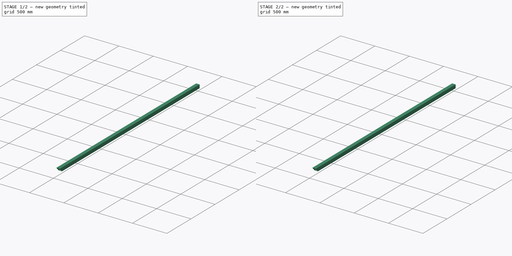
[diagram: build sequence overview — one tinted view per stage of 2, left to right]
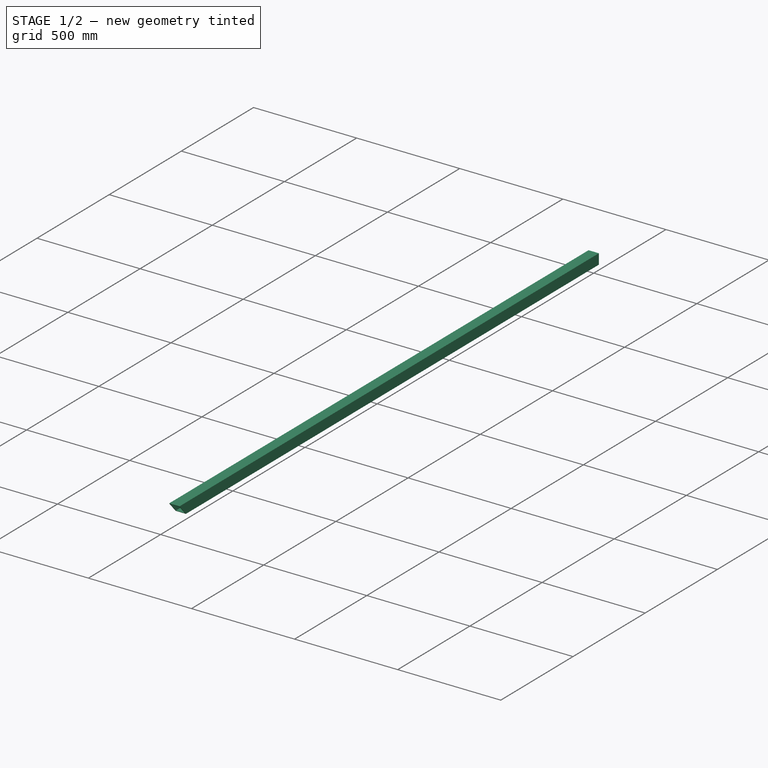
[diagram: stage 1 of 2 — iso view after this stage's code; geometry added in this stage tinted green]
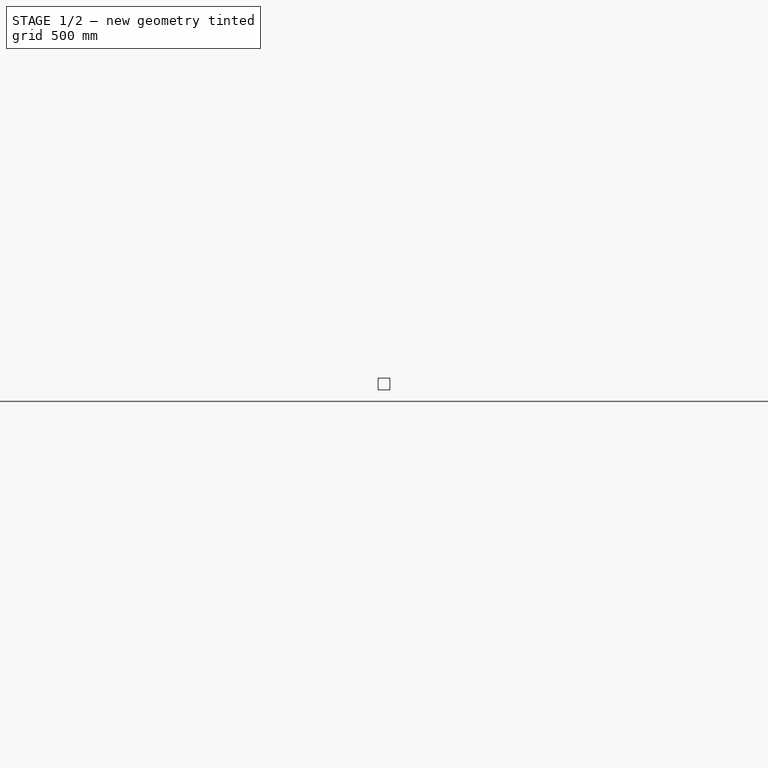
[diagram: stage 1 of 2 — front view after this stage's code; geometry added in this stage tinted green]
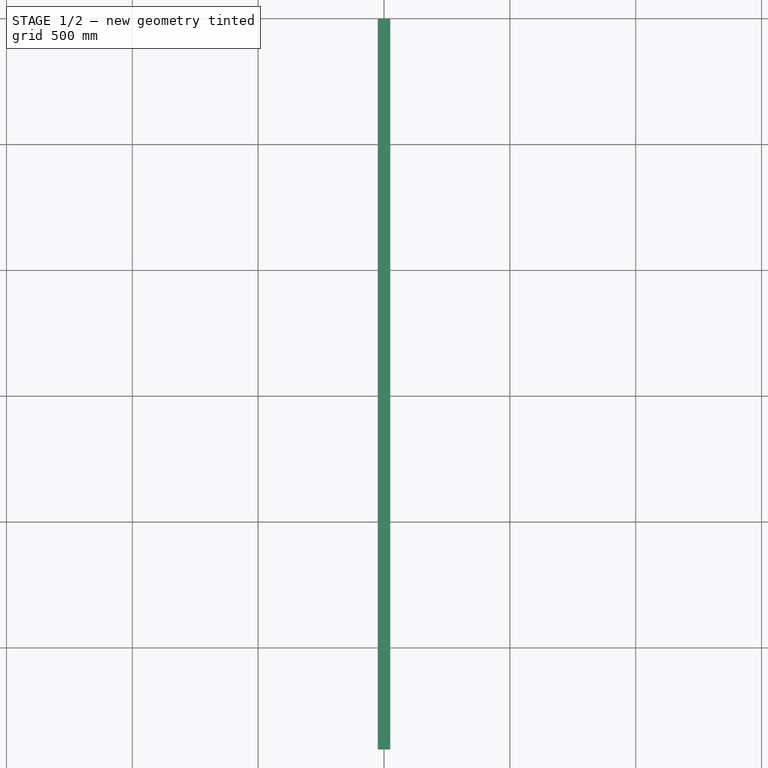
[diagram: stage 1 of 2 — top view after this stage's code; geometry added in this stage tinted green]
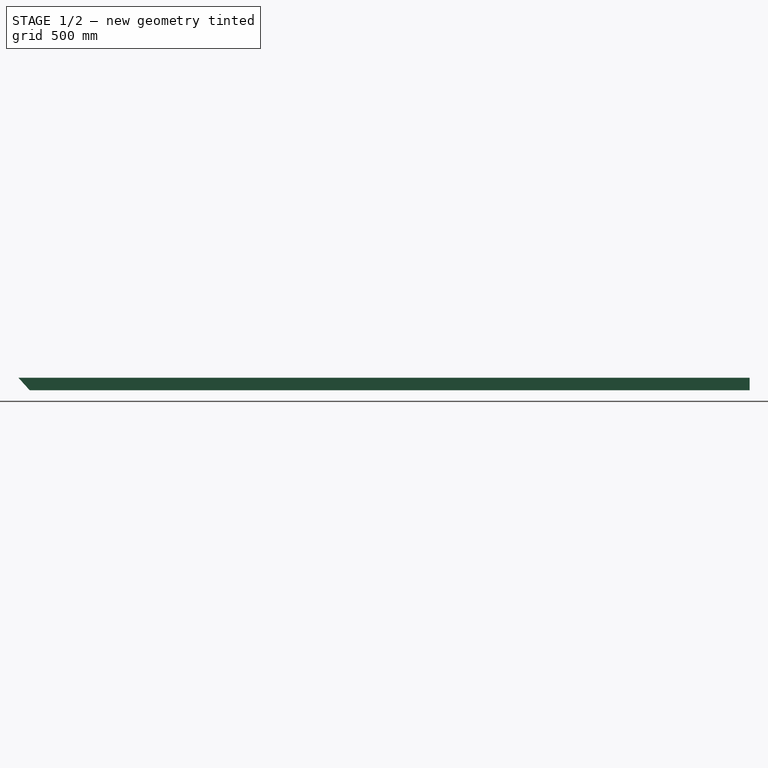
[diagram: stage 1 of 2 — right view after this stage's code; geometry added in this stage tinted green]
FCSTD DOCUMENT  (FreeCAD 0.15R4671 (Git))
Label: Tube_50x50x3_L2905
License: All rights reserved
LicenseURL: http://en.wikipedia.org/wiki/All_rights_reserved
objects: Sketcher::SketchObject×3, PartDesign::Pocket×2, PartDesign::Pad×1
note: 9 computed .brp shape members not serialized (recipe doc carries the construction recipe); baked Part::Feature solids carry a one-line shape summary decoded from their .brp

FEATURE [Sketcher::SketchObject] Sketch
  Placement = pos=(0,0,0) rot=(1,0,0;1.5708rad)
  sketch-geometry (10):
    g0: LineSegment StartX=25 StartY=-25 StartZ=0 EndX=25 EndY=25 EndZ=0
    g1: LineSegment StartX=25 StartY=25 StartZ=0 EndX=-25 EndY=25 EndZ=0
    g2: LineSegment StartX=-25 StartY=25 StartZ=0 EndX=-25 EndY=-25 EndZ=0
    g3: LineSegment StartX=-25 StartY=-25 StartZ=0 EndX=25 EndY=-25 EndZ=0
    g4: Circle [constr] CenterX=0 CenterY=0 CenterZ=0 NormalX=0 NormalY=0 NormalZ=1 Radius=35.3553
    g5: LineSegment StartX=22 StartY=-22 StartZ=0 EndX=22 EndY=22 EndZ=0
    g6: LineSegment StartX=22 StartY=22 StartZ=0 EndX=-22 EndY=22 EndZ=0
    g7: LineSegment StartX=-22 StartY=22 StartZ=0 EndX=-22 EndY=-22 EndZ=0
    g8: LineSegment StartX=-22 StartY=-22 StartZ=0 EndX=22 EndY=-22 EndZ=0
    g9: Circle [constr] CenterX=0 CenterY=0 CenterZ=0 NormalX=0 NormalY=0 NormalZ=1 Radius=31.1127
  constraints (30):
    c: Coincident(g0,g1)
    c: Coincident(g1,g2)
    c: Coincident(g2,g3)
    c: Coincident(g3,g0)
    c: Equal(g0,g1)
    c: Equal(g0,g2)
    c: Equal(g0,g3)
    c: PointOnObject(g0,g4)
    c: PointOnObject(g1,g4)
    c: PointOnObject(g2,g4)
    c: PointOnObject(g3,g4)
    c: Coincident(g1,g-1)
    c: Coincident(g5,g6)
    c: Coincident(g6,g7)
    c: Coincident(g7,g8)
    c: Coincident(g8,g5)
    c: Equal(g5,g6)
    c: Equal(g5,g7)
    c: Equal(g5,g8)
    c: PointOnObject(g5,g9)
    c: PointOnObject(g6,g9)
    c: PointOnObject(g7,g9)
    c: PointOnObject(g8,g9)
    c: Coincident(g6,g-1)
    c: Horizontal(g1)
    c: DistanceX(g1,g0) = 50
    c: Coincident(g4,g-1)
    c: Coincident(g9,g-1)
    c: Horizontal(g6)
    c: DistanceX(g6,g5) = 44
FEATURE [PartDesign::Pad] Pad
  Length = 2905
  Length2 = 100
  Placement = pos=(0,0,0) rot=(1,0,0;1.5708rad)
  Sketch = -> Sketch
  Type = 0
FEATURE [Sketcher::SketchObject] Sketch001
  ExternalGeometry = -> [Pad]
  Placement = pos=(25,0,0) rot=(0.707107,0,0.707107;3.14159rad)
  Support = -> Pad [Face1]
  sketch-geometry (3):
    g0: LineSegment StartX=25 StartY=2905 StartZ=0 EndX=-25 EndY=2859.98 EndZ=0
    g1: LineSegment StartX=-25 StartY=2859.98 StartZ=0 EndX=-25 EndY=2905 EndZ=0
    g2: LineSegment StartX=-25 StartY=2905 StartZ=0 EndX=25 EndY=2905 EndZ=0
  constraints (7):
    c: PointOnObject(g0,g-4)
    c: Coincident(g0,g-3)
    c: Angle(g0,g-5) = 0.837758
    c: Coincident(g0,g1)
    c: Coincident(g1,g-4)
    c: Coincident(g1,g2)
    c: Coincident(g2,g0)
FEATURE [PartDesign::Pocket] Pocket
  Length = 5
  Placement = pos=(0,0,0) rot=(1,0,0;1.5708rad)
  Sketch = -> Sketch001
  Type = 1
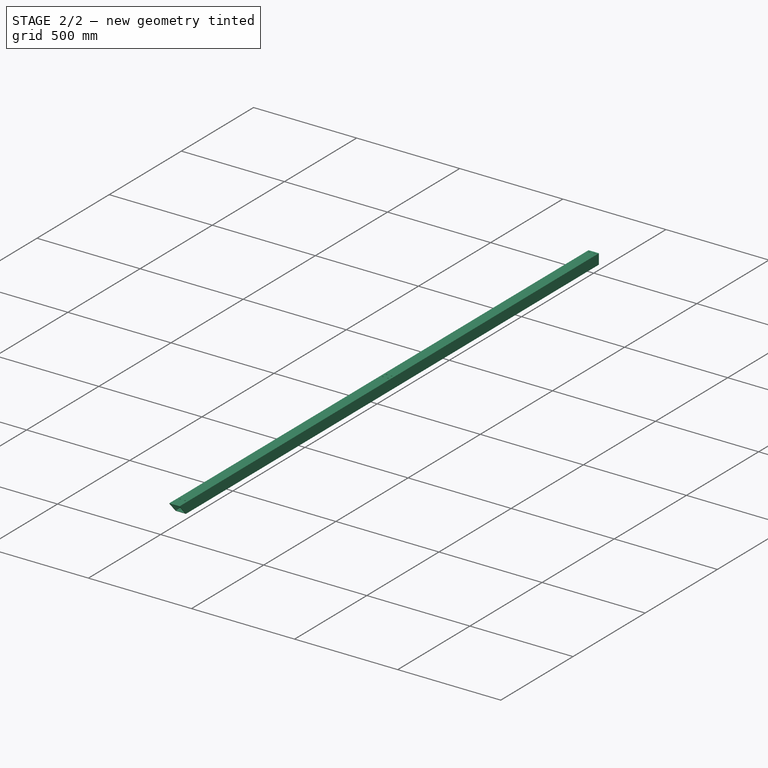
[diagram: stage 2 of 2 — iso view after this stage's code; geometry added in this stage tinted green]
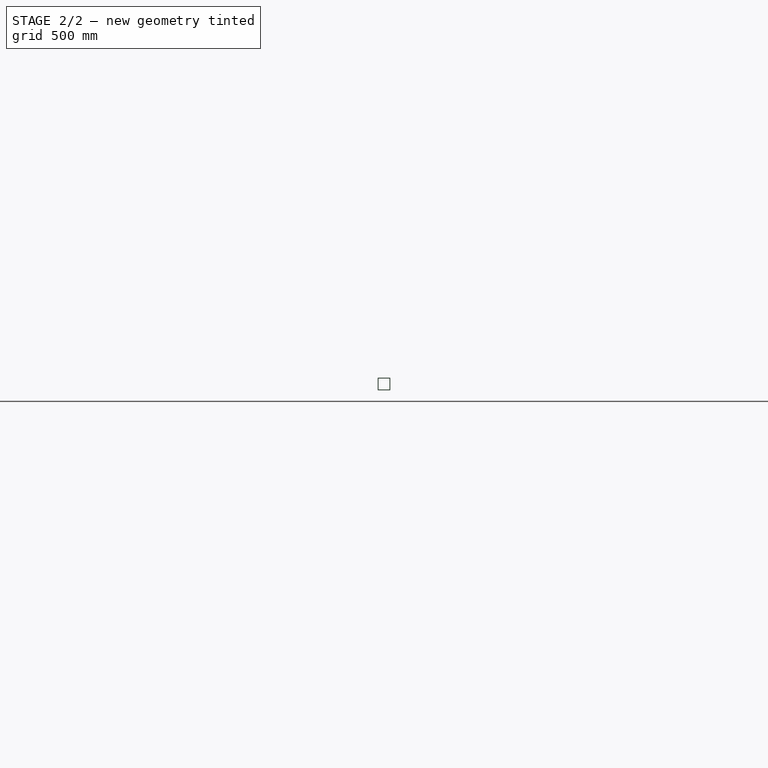
[diagram: stage 2 of 2 — front view after this stage's code; geometry added in this stage tinted green]
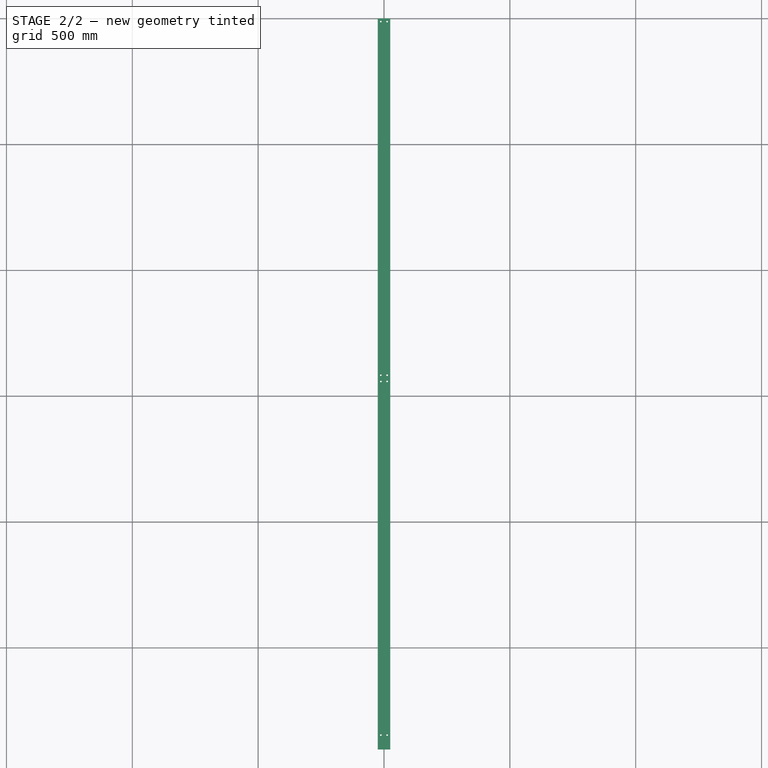
[diagram: stage 2 of 2 — top view after this stage's code; geometry added in this stage tinted green]
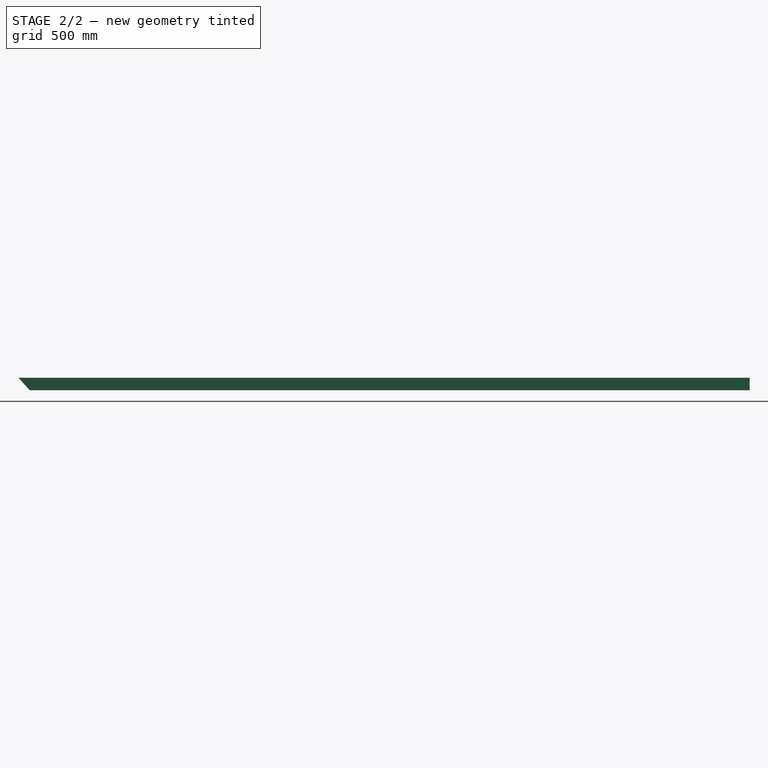
[diagram: stage 2 of 2 — right view after this stage's code; geometry added in this stage tinted green]
FEATURE [Sketcher::SketchObject] Sketch002
  Placement = pos=(0,0,25) rot=(0,0,1;3.14159rad)
  Support = -> Pocket [Face3]
  sketch-geometry (9):
    g0: Circle CenterX=-12.5 CenterY=12.5 CenterZ=0 NormalX=0 NormalY=0 NormalZ=1 Radius=3.5
    g1: Circle CenterX=12.5 CenterY=12.5 CenterZ=0 NormalX=0 NormalY=0 NormalZ=1 Radius=3.5
    g2: Circle CenterX=-12.5 CenterY=1417.5 CenterZ=0 NormalX=0 NormalY=0 NormalZ=1 Radius=3.5
    g3: Circle CenterX=12.5 CenterY=1417.5 CenterZ=0 NormalX=0 NormalY=0 NormalZ=1 Radius=3.5
    g4: Circle CenterX=-12.5 CenterY=1442.5 CenterZ=0 NormalX=0 NormalY=0 NormalZ=1 Radius=3.5
    g5: Circle CenterX=12.5 CenterY=1442.5 CenterZ=0 NormalX=0 NormalY=0 NormalZ=1 Radius=3.5
    g6: Circle CenterX=-12.5 CenterY=2847.5 CenterZ=0 NormalX=0 NormalY=0 NormalZ=1 Radius=3.5
    g7: Circle CenterX=12.5 CenterY=2847.5 CenterZ=0 NormalX=0 NormalY=0 NormalZ=1 Radius=3.5
    g8: LineSegment [constr] StartX=-12.5 StartY=12.5 StartZ=0 EndX=-12.5 EndY=2847.5 EndZ=0
  constraints (16):
    c: Radius(g0) = 3.5
    c: Equal(g0, g1-g7) x7
    c: Symmetric(g0,g1,g-2)
    c: Symmetric(g2,g3,g-2)
    c: Symmetric(g4,g5,g-2)
    c: Symmetric(g7,g6,g-2)
    c: Coincident(g8,g0)
    c: Coincident(g8,g6)
    c: PointOnObject(g4,g8)
    c: PointOnObject(g2,g8)
    c: Vertical(g8)
    c: DistanceY(g-1,g0) = 12.5
    c: DistanceX(g0,g1) = 25
    c: DistanceY(g2,g0) = -1405
    c: DistanceY(g2,g4) = 25
    c: DistanceY(g4,g6) = 1405
FEATURE [PartDesign::Pocket] Pocket001
  Length = 5
  Placement = pos=(0,0,0) rot=(1,0,0;1.5708rad)
  Sketch = -> Sketch002
  Type = 1
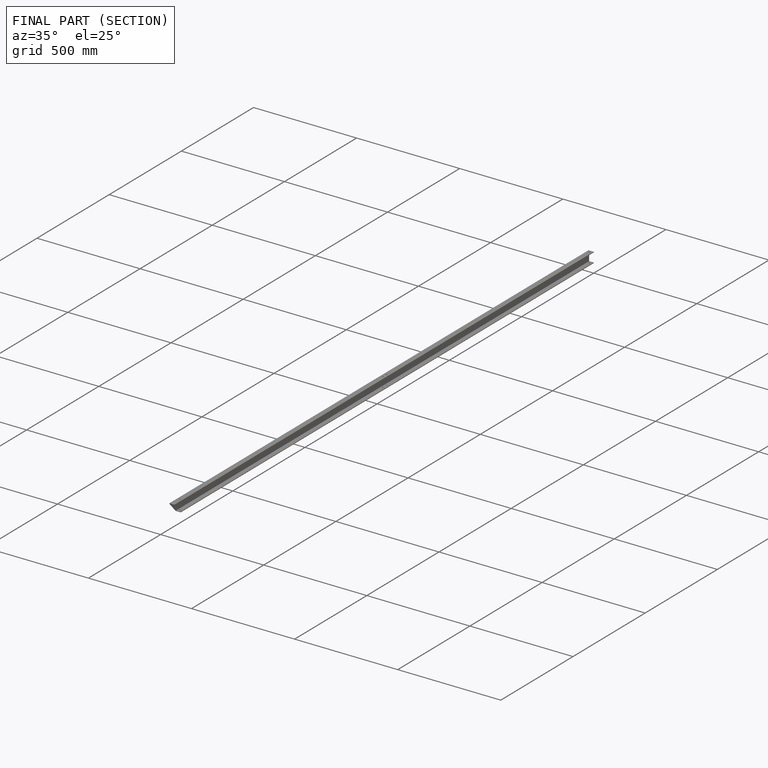
[diagram: finished part — half-section view (interior)]
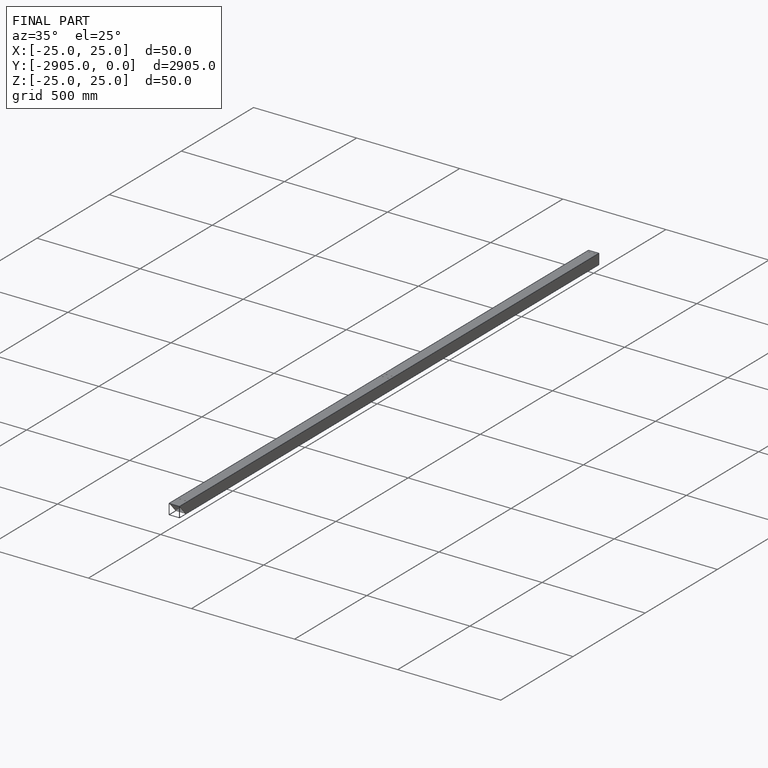
[diagram: finished part — iso view with bounding-box wireframe]
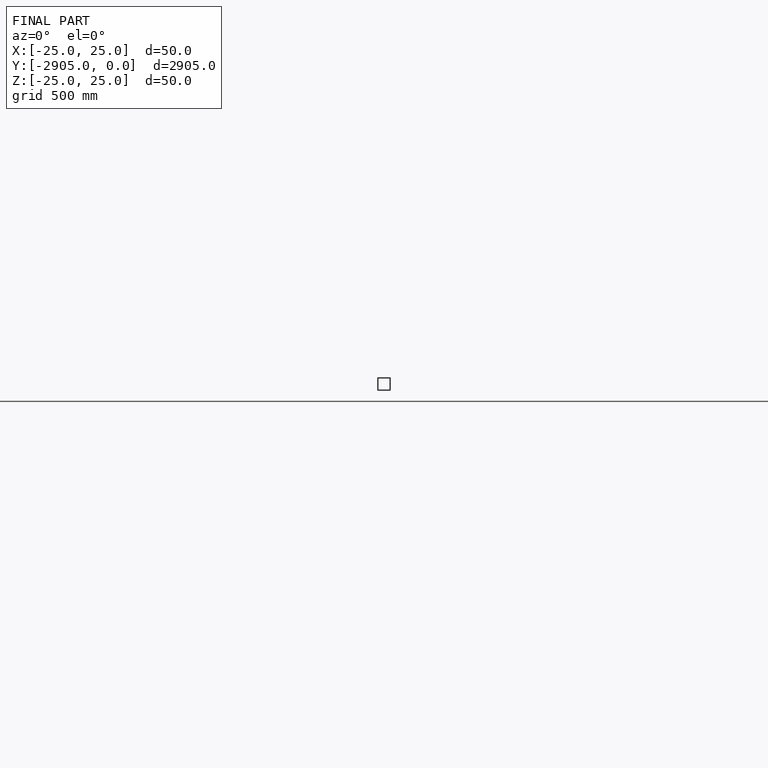
[diagram: finished part — front view with bounding-box wireframe]
